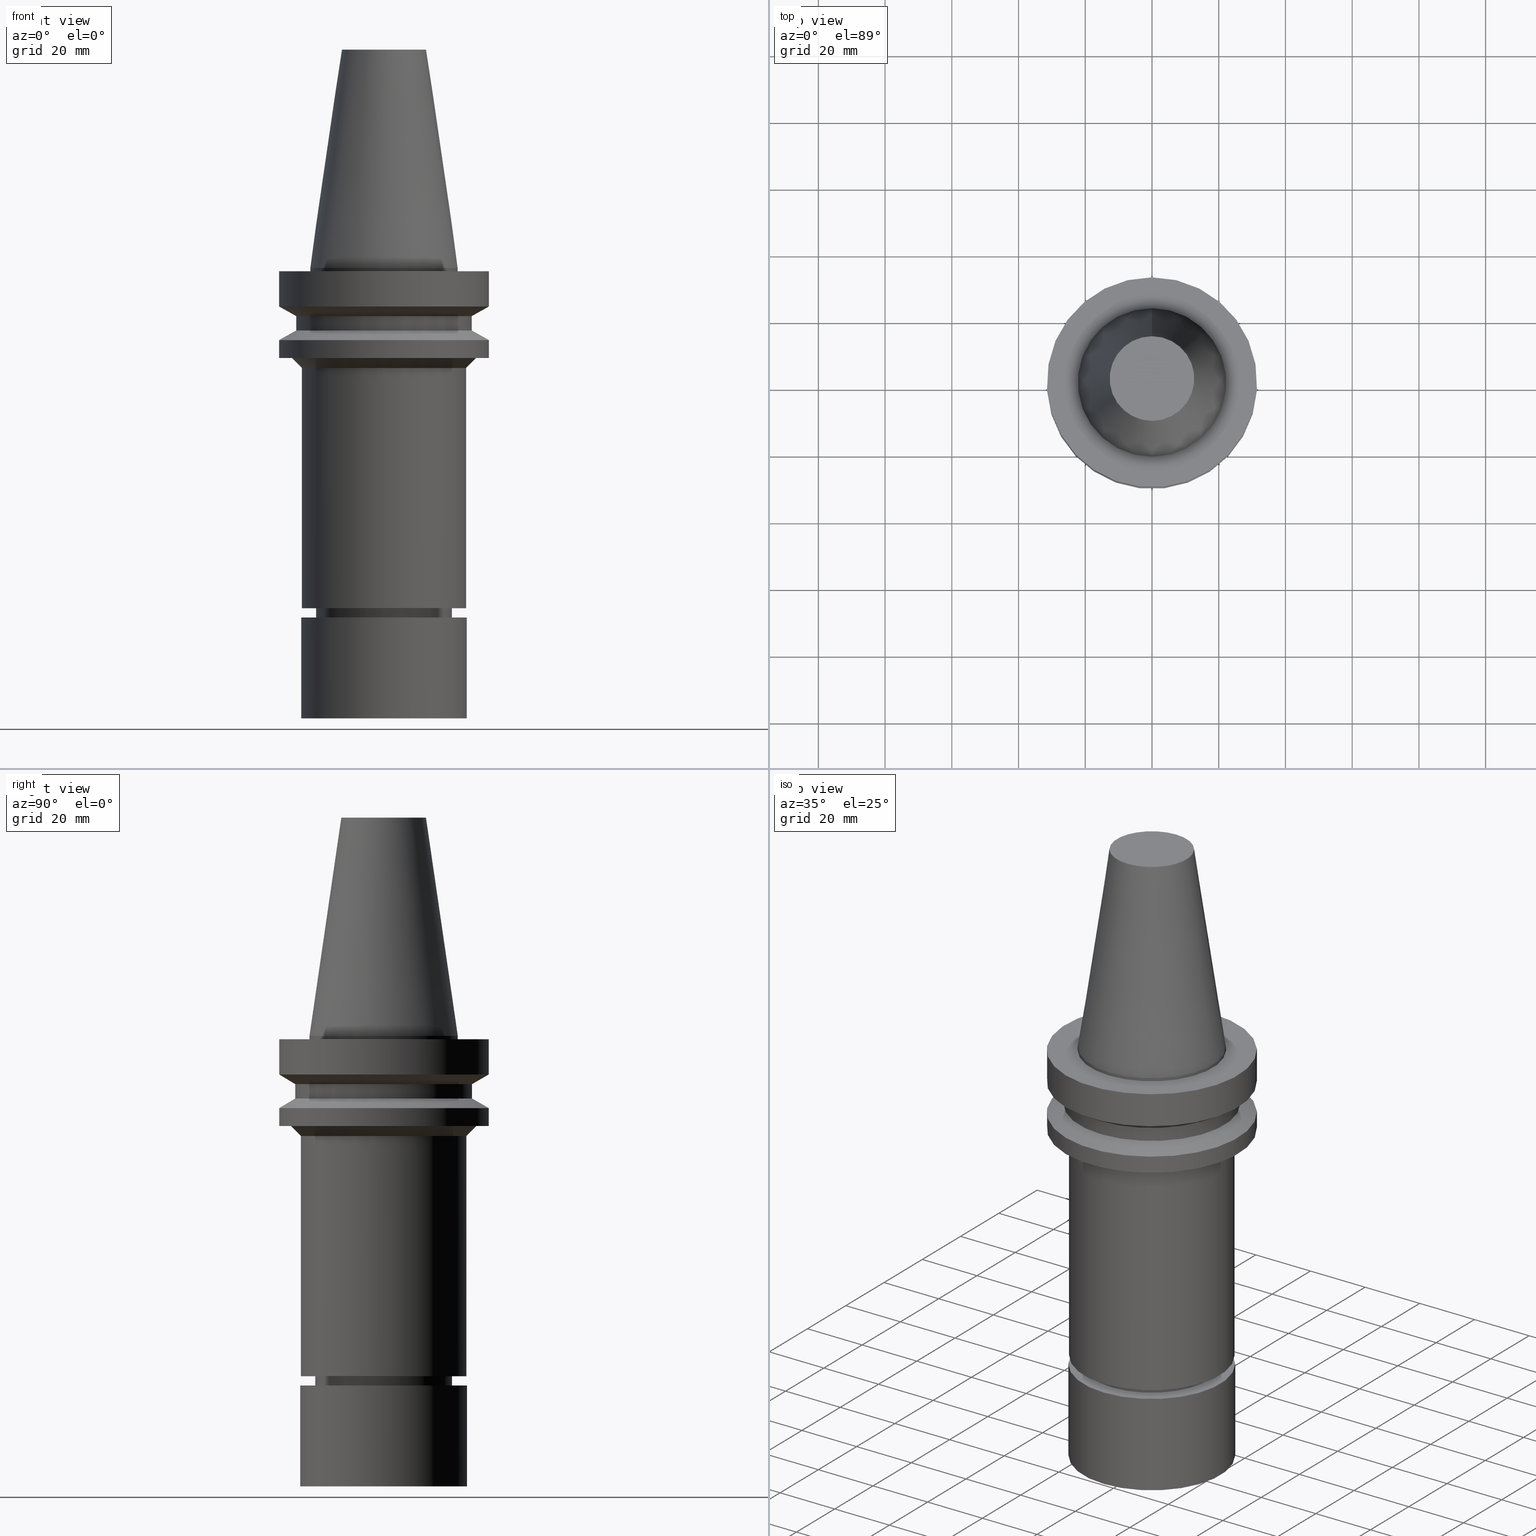
[diagram: canonical four-view strip — front | top / right | iso, engineering-drawing reading convention]
A machine part, canonical four-view strip (front | top / right | iso — engineering-drawing reading convention). The complete STEP part file that produces these views, byte-faithful:
ISO-10303-21;
HEADER;
FILE_DESCRIPTION((''),'1');
FILE_NAME('V:/90_\X2\53D65F9730C730FC30BF\X0\/00_\X2\6DE18DEF30C730FC30BF\X0\/ALL/BBT-BKUS\X2\FF76FF80FF9BFF78FF9E752852A05DE556F3\X0\201801/BBT40-MEGAER/BBT40-MEGAER32-135NL.stp','2018-02-07T02:36:01',(''),(''),'Spatial Interop R21 SP3','Kubotek KeyCreator 2011 V10.0.2 (22737)',' ');
FILE_SCHEMA(('automotive_design'));
ENDSEC;
DATA;
#1=MECHANICAL_DESIGN_GEOMETRIC_PRESENTATION_REPRESENTATION(' ',(#14,#15,#16,#17,#18,#19,#20,#21,#22,#23,#24,#25,#26,#27,#28,#29,#30,#31,#32,#33,#34,#35,#36,#37,#38,#39,#40,#41,#42,#43,#44,#45,#46,#47,#48,#49,#50,#51,#52,#53,#54,#55),#10);
#2=PRODUCT_DEFINITION_CONTEXT('',#56,'design');
#3=APPLICATION_PROTOCOL_DEFINITION('INTERNATIONAL STANDARD','automotive_design',1994,#56);
#4=PRODUCT_CATEGORY_RELATIONSHIP('NONE','NONE',#57,#58);
#5=SHAPE_DEFINITION_REPRESENTATION(#59,#60);
#6=PRODUCT_DEFINITION_CONTEXT('',#61,'design');
#7=APPLICATION_PROTOCOL_DEFINITION('INTERNATIONAL STANDARD','automotive_design',1994,#61);
#8=PRODUCT_CATEGORY_RELATIONSHIP('NONE','NONE',#62,#63);
#9=SHAPE_DEFINITION_REPRESENTATION(#64,#65);
#10= (GEOMETRIC_REPRESENTATION_CONTEXT(3)GLOBAL_UNCERTAINTY_ASSIGNED_CONTEXT((#68))GLOBAL_UNIT_ASSIGNED_CONTEXT((#70,#71,#72))REPRESENTATION_CONTEXT('NONE','WORKSPACE'));
#14=STYLED_ITEM('',(#74,#75),#76);
#15=STYLED_ITEM('',(#77,#78),#79);
#16=STYLED_ITEM('',(#80,#81),#82);
#17=STYLED_ITEM('',(#83,#84),#85);
#18=STYLED_ITEM('',(#86,#87),#88);
#19=STYLED_ITEM('',(#89),#90);
#20=STYLED_ITEM('',(#91),#92);
#21=STYLED_ITEM('',(#93),#94);
#22=STYLED_ITEM('',(#95,#96),#97);
#23=STYLED_ITEM('',(#98),#99);
#24=STYLED_ITEM('',(#100),#101);
#25=STYLED_ITEM('',(#102),#103);
#26=STYLED_ITEM('',(#104,#105),#106);
#27=STYLED_ITEM('',(#107,#108),#109);
#28=STYLED_ITEM('',(#110,#111),#112);
#29=STYLED_ITEM('',(#113,#114),#115);
#30=STYLED_ITEM('',(#116,#117),#118);
#31=STYLED_ITEM('',(#119),#120);
#32=STYLED_ITEM('',(#121),#122);
#33=STYLED_ITEM('',(#123),#124);
#34=STYLED_ITEM('',(#125,#126),#127);
#35=STYLED_ITEM('',(#128),#129);
#36=STYLED_ITEM('',(#130,#131),#132);
#37=STYLED_ITEM('',(#133,#134),#135);
#38=STYLED_ITEM('',(#136,#137),#138);
#39=STYLED_ITEM('',(#139),#140);
#40=STYLED_ITEM('',(#141),#142);
#41=STYLED_ITEM('',(#143),#144);
#42=STYLED_ITEM('',(#145,#146),#147);
#43=STYLED_ITEM('',(#148),#149);
#44=STYLED_ITEM('',(#150),#151);
#45=STYLED_ITEM('',(#152),#153);
#46=STYLED_ITEM('',(#154,#155),#156);
#47=STYLED_ITEM('',(#157,#158),#159);
#48=STYLED_ITEM('',(#160,#161),#162);
#49=STYLED_ITEM('',(#163,#164),#165);
#50=STYLED_ITEM('',(#166,#167),#168);
#51=STYLED_ITEM('',(#169),#170);
#52=STYLED_ITEM('',(#171),#172);
#53=STYLED_ITEM('',(#173,#174),#175);
#54=STYLED_ITEM('',(#176,#177),#178);
#55=STYLED_ITEM('',(#179),#180);
#56=APPLICATION_CONTEXT(' ');
#57=PRODUCT_CATEGORY('part','NONE');
#58=PRODUCT_RELATED_PRODUCT_CATEGORY('detail',' ',(#181));
#59=PRODUCT_DEFINITION_SHAPE('NONE','NONE',#182);
#60=ADVANCED_BREP_SHAPE_REPRESENTATION('Unnamed[1]',(#79,#183),#10);
#61=APPLICATION_CONTEXT(' ');
#62=PRODUCT_CATEGORY('part','NONE');
#63=PRODUCT_RELATED_PRODUCT_CATEGORY('detail',' ',(#184));
#64=PRODUCT_DEFINITION_SHAPE('NONE','NONE',#185);
#65=ADVANCED_BREP_SHAPE_REPRESENTATION('Unnamed[1]',(#85,#186),#10);
#68=UNCERTAINTY_MEASURE_WITH_UNIT(LENGTH_MEASURE(1.0E-006),#70,'','');
#70= (CONVERSION_BASED_UNIT('MILLIMETRE',#189)LENGTH_UNIT()NAMED_UNIT(#192));
#71= (NAMED_UNIT(#194)PLANE_ANGLE_UNIT()SI_UNIT($,.RADIAN.));
#72= (NAMED_UNIT(#194)SOLID_ANGLE_UNIT()SI_UNIT($,.STERADIAN.));
#74=PRESENTATION_STYLE_ASSIGNMENT((#200));
#75=PRESENTATION_STYLE_ASSIGNMENT((#201));
#76=ADVANCED_FACE('Unnamed[1]',(#202),#203,.T.);
#77=PRESENTATION_STYLE_ASSIGNMENT((#204));
#78=PRESENTATION_STYLE_ASSIGNMENT((#205));
#79=MANIFOLD_SOLID_BREP('Unnamed[1]',#206);
#80=PRESENTATION_STYLE_ASSIGNMENT((#207));
#81=PRESENTATION_STYLE_ASSIGNMENT((#208));
#82=ADVANCED_FACE('Unnamed[1]',(#209,#210),#211,.T.);
#83=PRESENTATION_STYLE_ASSIGNMENT((#212));
#84=PRESENTATION_STYLE_ASSIGNMENT((#213));
#85=MANIFOLD_SOLID_BREP('Unnamed[1]',#214);
#86=PRESENTATION_STYLE_ASSIGNMENT((#215));
#87=PRESENTATION_STYLE_ASSIGNMENT((#216));
#88=ADVANCED_FACE('Unnamed[1]',(#217,#218),#219,.T.);
#89=PRESENTATION_STYLE_ASSIGNMENT((#220));
#90=EDGE_CURVE('Unnamed[1]',#221,#221,#222,.T.);
#91=PRESENTATION_STYLE_ASSIGNMENT((#223));
#92=EDGE_CURVE('Unnamed[1]',#224,#224,#225,.T.);
#93=PRESENTATION_STYLE_ASSIGNMENT((#226));
#94=EDGE_CURVE('Unnamed[1]',#227,#227,#228,.T.);
#95=PRESENTATION_STYLE_ASSIGNMENT((#229));
#96=PRESENTATION_STYLE_ASSIGNMENT((#230));
#97=ADVANCED_FACE('Unnamed[1]',(#231,#232),#233,.T.);
#98=PRESENTATION_STYLE_ASSIGNMENT((#234));
#99=EDGE_CURVE('Unnamed[1]',#235,#235,#236,.T.);
#100=PRESENTATION_STYLE_ASSIGNMENT((#237));
#101=EDGE_CURVE('Unnamed[1]',#238,#238,#239,.T.);
#102=PRESENTATION_STYLE_ASSIGNMENT((#240));
#103=EDGE_CURVE('Unnamed[1]',#241,#241,#242,.T.);
#104=PRESENTATION_STYLE_ASSIGNMENT((#243));
#105=PRESENTATION_STYLE_ASSIGNMENT((#244));
#106=ADVANCED_FACE('Unnamed[1]',(#245,#246),#247,.T.);
#107=PRESENTATION_STYLE_ASSIGNMENT((#248));
#108=PRESENTATION_STYLE_ASSIGNMENT((#249));
#109=ADVANCED_FACE('Unnamed[1]',(#250,#251),#252,.T.);
#110=PRESENTATION_STYLE_ASSIGNMENT((#253));
#111=PRESENTATION_STYLE_ASSIGNMENT((#254));
#112=ADVANCED_FACE('Unnamed[1]',(#255,#256),#257,.T.);
#113=PRESENTATION_STYLE_ASSIGNMENT((#258));
#114=PRESENTATION_STYLE_ASSIGNMENT((#259));
#115=ADVANCED_FACE('Unnamed[1]',(#260,#261),#262,.T.);
#116=PRESENTATION_STYLE_ASSIGNMENT((#263));
#117=PRESENTATION_STYLE_ASSIGNMENT((#264));
#118=ADVANCED_FACE('Unnamed[1]',(#265),#266,.T.);
#119=PRESENTATION_STYLE_ASSIGNMENT((#267));
#120=EDGE_CURVE('Unnamed[1]',#268,#268,#269,.T.);
#121=PRESENTATION_STYLE_ASSIGNMENT((#270));
#122=EDGE_CURVE('Unnamed[1]',#271,#271,#272,.T.);
#123=PRESENTATION_STYLE_ASSIGNMENT((#273));
#124=EDGE_CURVE('Unnamed[1]',#274,#274,#275,.T.);
#125=PRESENTATION_STYLE_ASSIGNMENT((#276));
#126=PRESENTATION_STYLE_ASSIGNMENT((#277));
#127=ADVANCED_FACE('Unnamed[1]',(#278,#279),#280,.T.);
#128=PRESENTATION_STYLE_ASSIGNMENT((#281));
#129=EDGE_CURVE('Unnamed[1]',#282,#282,#283,.T.);
#130=PRESENTATION_STYLE_ASSIGNMENT((#284));
#131=PRESENTATION_STYLE_ASSIGNMENT((#285));
#132=ADVANCED_FACE('Unnamed[1]',(#286,#287),#288,.T.);
#133=PRESENTATION_STYLE_ASSIGNMENT((#289));
#134=PRESENTATION_STYLE_ASSIGNMENT((#290));
#135=ADVANCED_FACE('Unnamed[1]',(#291,#292),#293,.T.);
#136=PRESENTATION_STYLE_ASSIGNMENT((#294));
#137=PRESENTATION_STYLE_ASSIGNMENT((#295));
#138=ADVANCED_FACE('Unnamed[1]',(#296,#297),#298,.T.);
#139=PRESENTATION_STYLE_ASSIGNMENT((#299));
#140=EDGE_CURVE('Unnamed[1]',#300,#300,#301,.T.);
#141=PRESENTATION_STYLE_ASSIGNMENT((#302));
#142=EDGE_CURVE('Unnamed[1]',#303,#303,#304,.T.);
#143=PRESENTATION_STYLE_ASSIGNMENT((#305));
#144=EDGE_CURVE('Unnamed[1]',#306,#306,#307,.T.);
#145=PRESENTATION_STYLE_ASSIGNMENT((#308));
#146=PRESENTATION_STYLE_ASSIGNMENT((#309));
#147=ADVANCED_FACE('Unnamed[1]',(#310),#311,.T.);
#148=PRESENTATION_STYLE_ASSIGNMENT((#312));
#149=EDGE_CURVE('Unnamed[1]',#313,#313,#314,.T.);
#150=PRESENTATION_STYLE_ASSIGNMENT((#315));
#151=EDGE_CURVE('Unnamed[1]',#316,#316,#317,.T.);
#152=PRESENTATION_STYLE_ASSIGNMENT((#318));
#153=EDGE_CURVE('Unnamed[1]',#319,#319,#320,.T.);
#154=PRESENTATION_STYLE_ASSIGNMENT((#321));
#155=PRESENTATION_STYLE_ASSIGNMENT((#322));
#156=ADVANCED_FACE('Unnamed[1]',(#323,#324),#325,.T.);
#157=PRESENTATION_STYLE_ASSIGNMENT((#326));
#158=PRESENTATION_STYLE_ASSIGNMENT((#327));
#159=ADVANCED_FACE('Unnamed[1]',(#328,#329),#330,.T.);
#160=PRESENTATION_STYLE_ASSIGNMENT((#331));
#161=PRESENTATION_STYLE_ASSIGNMENT((#332));
#162=ADVANCED_FACE('Unnamed[1]',(#333,#334),#335,.T.);
#163=PRESENTATION_STYLE_ASSIGNMENT((#336));
#164=PRESENTATION_STYLE_ASSIGNMENT((#337));
#165=ADVANCED_FACE('Unnamed[1]',(#338,#339),#340,.T.);
#166=PRESENTATION_STYLE_ASSIGNMENT((#341));
#167=PRESENTATION_STYLE_ASSIGNMENT((#342));
#168=ADVANCED_FACE('Unnamed[1]',(#343),#344,.T.);
#169=PRESENTATION_STYLE_ASSIGNMENT((#345));
#170=EDGE_CURVE('Unnamed[1]',#346,#346,#347,.T.);
#171=PRESENTATION_STYLE_ASSIGNMENT((#348));
#172=EDGE_CURVE('Unnamed[1]',#349,#349,#350,.T.);
#173=PRESENTATION_STYLE_ASSIGNMENT((#351));
#174=PRESENTATION_STYLE_ASSIGNMENT((#352));
#175=ADVANCED_FACE('Unnamed[1]',(#353,#354),#355,.T.);
#176=PRESENTATION_STYLE_ASSIGNMENT((#356));
#177=PRESENTATION_STYLE_ASSIGNMENT((#357));
#178=ADVANCED_FACE('Unnamed[1]',(#358,#359),#360,.F.);
#179=PRESENTATION_STYLE_ASSIGNMENT((#361));
#180=EDGE_CURVE('Unnamed[1]',#362,#362,#363,.T.);
#181=PRODUCT('Unnamed[1]','Unnamed[1]','PART-Unnamed[1]-DESC',(#364));
#182=PRODUCT_DEFINITION('NONE','NONE',#365,#2);
#183=AXIS2_PLACEMENT_3D('',#366,#367,#368);
#184=PRODUCT('Unnamed[1]','Unnamed[1]','PART-Unnamed[1]-DESC',(#369));
#185=PRODUCT_DEFINITION('NONE','NONE',#370,#6);
#186=AXIS2_PLACEMENT_3D('',#371,#372,#373);
#189=LENGTH_MEASURE_WITH_UNIT(LENGTH_MEASURE(1.0),#374);
#192=DIMENSIONAL_EXPONENTS(1.0,0.0,0.0,0.0,0.0,0.0,0.0);
#194=DIMENSIONAL_EXPONENTS(0.0,0.0,0.0,0.0,0.0,0.0,0.0);
#200=SURFACE_STYLE_USAGE(.BOTH.,#375);
#201=CURVE_STYLE('',#376,POSITIVE_LENGTH_MEASURE(1000.0),#377);
#202=FACE_OUTER_BOUND('',#378,.T.);
#203=PLANE('',#379);
#204=SURFACE_STYLE_USAGE(.BOTH.,#380);
#205=CURVE_STYLE('',#381,POSITIVE_LENGTH_MEASURE(1000.0),#382);
#206=CLOSED_SHELL('',(#168,#165,#109,#162,#97,#88,#127,#132,#112,#178,#156,#138,#115,#135,#106,#175,#159,#76));
#207=SURFACE_STYLE_USAGE(.BOTH.,#383);
#208=CURVE_STYLE('',#384,POSITIVE_LENGTH_MEASURE(1000.0),#385);
#209=FACE_BOUND('',#386,.T.);
#210=FACE_BOUND('',#387,.T.);
#211=CYLINDRICAL_SURFACE('',#388,24.9999999999999);
#212=SURFACE_STYLE_USAGE(.BOTH.,#389);
#213=CURVE_STYLE('',#390,POSITIVE_LENGTH_MEASURE(1000.0),#391);
#214=CLOSED_SHELL('',(#147,#118,#82));
#215=SURFACE_STYLE_USAGE(.BOTH.,#392);
#216=CURVE_STYLE('',#393,POSITIVE_LENGTH_MEASURE(1000.0),#394);
#217=FACE_BOUND('',#395,.T.);
#218=FACE_BOUND('',#396,.T.);
#219=CONICAL_SURFACE('',#397,28.9999999999998,1.04719755119657);
#220=CURVE_STYLE('',#398,POSITIVE_LENGTH_MEASURE(1000.0),#399);
#221=VERTEX_POINT('',#400);
#222=CIRCLE('',#401,31.5000000000006);
#223=CURVE_STYLE('',#402,POSITIVE_LENGTH_MEASURE(1000.0),#403);
#224=VERTEX_POINT('',#404);
#225=CIRCLE('',#405,20.5000000000011);
#226=CURVE_STYLE('',#406,POSITIVE_LENGTH_MEASURE(1000.0),#407);
#227=VERTEX_POINT('',#408);
#228=CIRCLE('',#409,22.225);
#229=SURFACE_STYLE_USAGE(.BOTH.,#410);
#230=CURVE_STYLE('',#411,POSITIVE_LENGTH_MEASURE(1000.0),#412);
#231=FACE_BOUND('',#413,.T.);
#232=FACE_BOUND('',#414,.T.);
#233=CYLINDRICAL_SURFACE('',#415,31.5);
#234=CURVE_STYLE('',#416,POSITIVE_LENGTH_MEASURE(1000.0),#417);
#235=VERTEX_POINT('',#418);
#236=CIRCLE('',#419,24.9999999999999);
#237=CURVE_STYLE('',#420,POSITIVE_LENGTH_MEASURE(1000.0),#421);
#238=VERTEX_POINT('',#422);
#239=CIRCLE('',#423,24.7999999999997);
#240=CURVE_STYLE('',#424,POSITIVE_LENGTH_MEASURE(1000.0),#425);
#241=VERTEX_POINT('',#426);
#242=CIRCLE('',#427,20.0);
#243=SURFACE_STYLE_USAGE(.BOTH.,#428);
#244=CURVE_STYLE('',#429,POSITIVE_LENGTH_MEASURE(1000.0),#430);
#245=FACE_BOUND('',#431,.T.);
#246=FACE_BOUND('',#432,.T.);
#247=CONICAL_SURFACE('',#433,20.2500000000005,1.04719755120258);
#248=SURFACE_STYLE_USAGE(.BOTH.,#434);
#249=CURVE_STYLE('',#435,POSITIVE_LENGTH_MEASURE(1000.0),#436);
#250=FACE_BOUND('',#437,.T.);
#251=FACE_BOUND('',#438,.T.);
#252=CYLINDRICAL_SURFACE('',#439,22.225);
#253=SURFACE_STYLE_USAGE(.BOTH.,#440);
#254=CURVE_STYLE('',#441,POSITIVE_LENGTH_MEASURE(1000.0),#442);
#255=FACE_BOUND('',#443,.T.);
#256=FACE_BOUND('',#444,.T.);
#257=CYLINDRICAL_SURFACE('',#445,31.5000000000005);
#258=SURFACE_STYLE_USAGE(.BOTH.,#446);
#259=CURVE_STYLE('',#447,POSITIVE_LENGTH_MEASURE(1000.0),#448);
#260=FACE_BOUND('',#449,.T.);
#261=FACE_OUTER_BOUND('',#450,.T.);
#262=PLANE('',#451);
#263=SURFACE_STYLE_USAGE(.BOTH.,#452);
#264=CURVE_STYLE('',#453,POSITIVE_LENGTH_MEASURE(1000.0),#454);
#265=FACE_OUTER_BOUND('',#455,.T.);
#266=PLANE('',#456);
#267=CURVE_STYLE('',#457,POSITIVE_LENGTH_MEASURE(1000.0),#458);
#268=VERTEX_POINT('',#459);
#269=CIRCLE('',#460,12.6875000000001);
#270=CURVE_STYLE('',#461,POSITIVE_LENGTH_MEASURE(1000.0),#462);
#271=VERTEX_POINT('',#463);
#272=CIRCLE('',#464,22.225);
#273=CURVE_STYLE('',#465,POSITIVE_LENGTH_MEASURE(1000.0),#466);
#274=VERTEX_POINT('',#467);
#275=CIRCLE('',#468,31.5000000000003);
#276=SURFACE_STYLE_USAGE(.BOTH.,#469);
#277=CURVE_STYLE('',#470,POSITIVE_LENGTH_MEASURE(1000.0),#471);
#278=FACE_BOUND('',#472,.T.);
#279=FACE_BOUND('',#473,.T.);
#280=CYLINDRICAL_SURFACE('',#474,26.4999999999997);
#281=CURVE_STYLE('',#475,POSITIVE_LENGTH_MEASURE(1000.0),#476);
#282=VERTEX_POINT('',#477);
#283=CIRCLE('',#478,31.4999999999996);
#284=SURFACE_STYLE_USAGE(.BOTH.,#479);
#285=CURVE_STYLE('',#480,POSITIVE_LENGTH_MEASURE(1000.0),#481);
#286=FACE_BOUND('',#482,.T.);
#287=FACE_BOUND('',#483,.T.);
#288=CONICAL_SURFACE('',#484,29.0000000000003,1.04719755119651);
#289=SURFACE_STYLE_USAGE(.BOTH.,#485);
#290=CURVE_STYLE('',#486,POSITIVE_LENGTH_MEASURE(1000.0),#487);
#291=FACE_BOUND('',#488,.T.);
#292=FACE_BOUND('',#489,.T.);
#293=CYLINDRICAL_SURFACE('',#490,20.499999999996);
#294=SURFACE_STYLE_USAGE(.BOTH.,#491);
#295=CURVE_STYLE('',#492,POSITIVE_LENGTH_MEASURE(1000.0),#493);
#296=FACE_BOUND('',#494,.T.);
#297=FACE_BOUND('',#495,.T.);
#298=CYLINDRICAL_SURFACE('',#496,24.7999999999999);
#299=CURVE_STYLE('',#497,POSITIVE_LENGTH_MEASURE(1000.0),#498);
#300=VERTEX_POINT('',#499);
#301=CIRCLE('',#500,18.8999999999996);
#302=CURVE_STYLE('',#501,POSITIVE_LENGTH_MEASURE(1000.0),#502);
#303=VERTEX_POINT('',#503);
#304=CIRCLE('',#504,24.9999999999999);
#305=CURVE_STYLE('',#505,POSITIVE_LENGTH_MEASURE(1000.0),#506);
#306=VERTEX_POINT('',#507);
#307=CIRCLE('',#508,20.499999999991);
#308=SURFACE_STYLE_USAGE(.BOTH.,#509);
#309=CURVE_STYLE('',#510,POSITIVE_LENGTH_MEASURE(1000.0),#511);
#310=FACE_OUTER_BOUND('',#512,.T.);
#311=PLANE('',#513);
#312=CURVE_STYLE('',#514,POSITIVE_LENGTH_MEASURE(1000.0),#515);
#313=VERTEX_POINT('',#516);
#314=CIRCLE('',#517,26.5);
#315=CURVE_STYLE('',#518,POSITIVE_LENGTH_MEASURE(1000.0),#519);
#316=VERTEX_POINT('',#520);
#317=CIRCLE('',#521,31.5000000000003);
#318=CURVE_STYLE('',#522,POSITIVE_LENGTH_MEASURE(1000.0),#523);
#319=VERTEX_POINT('',#524);
#320=CIRCLE('',#525,26.4999999999994);
#321=SURFACE_STYLE_USAGE(.BOTH.,#526);
#322=CURVE_STYLE('',#527,POSITIVE_LENGTH_MEASURE(1000.0),#528);
#323=FACE_BOUND('',#529,.T.);
#324=FACE_BOUND('',#530,.T.);
#325=CONICAL_SURFACE('',#531,26.3000000012197,0.785398163374259);
#326=SURFACE_STYLE_USAGE(.BOTH.,#532);
#327=CURVE_STYLE('',#533,POSITIVE_LENGTH_MEASURE(1000.0),#534);
#328=FACE_BOUND('',#535,.T.);
#329=FACE_BOUND('',#536,.T.);
#330=CONICAL_SURFACE('',#537,19.4499999999998,0.523598775598225);
#331=SURFACE_STYLE_USAGE(.BOTH.,#538);
#332=CURVE_STYLE('',#539,POSITIVE_LENGTH_MEASURE(1000.0),#540);
#333=FACE_OUTER_BOUND('',#541,.T.);
#334=FACE_BOUND('',#542,.T.);
#335=PLANE('',#543);
#336=SURFACE_STYLE_USAGE(.BOTH.,#544);
#337=CURVE_STYLE('',#545,POSITIVE_LENGTH_MEASURE(1000.0),#546);
#338=FACE_BOUND('',#547,.T.);
#339=FACE_BOUND('',#548,.T.);
#340=CONICAL_SURFACE('',#549,17.45625,0.144812498238936);
#341=SURFACE_STYLE_USAGE(.BOTH.,#550);
#342=CURVE_STYLE('',#551,POSITIVE_LENGTH_MEASURE(1000.0),#552);
#343=FACE_OUTER_BOUND('',#553,.T.);
#344=PLANE('',#554);
#345=CURVE_STYLE('',#555,POSITIVE_LENGTH_MEASURE(1000.0),#556);
#346=VERTEX_POINT('',#557);
#347=CIRCLE('',#558,27.8000000024396);
#348=CURVE_STYLE('',#559,POSITIVE_LENGTH_MEASURE(1000.0),#560);
#349=VERTEX_POINT('',#561);
#350=CIRCLE('',#562,24.8000000000002);
#351=SURFACE_STYLE_USAGE(.BOTH.,#563);
#352=CURVE_STYLE('',#564,POSITIVE_LENGTH_MEASURE(1000.0),#565);
#353=FACE_BOUND('',#566,.T.);
#354=FACE_BOUND('',#567,.T.);
#355=CYLINDRICAL_SURFACE('',#568,19.9999999999999);
#356=SURFACE_STYLE_USAGE(.BOTH.,#569);
#357=CURVE_STYLE('',#570,POSITIVE_LENGTH_MEASURE(1000.0),#571);
#358=FACE_BOUND('',#572,.T.);
#359=FACE_BOUND('',#573,.T.);
#360=CONICAL_SURFACE('',#574,29.65000000122,1.57075486116235);
#361=CURVE_STYLE('',#575,POSITIVE_LENGTH_MEASURE(1000.0),#576);
#362=VERTEX_POINT('',#577);
#363=CIRCLE('',#578,19.9999999999999);
#364=PRODUCT_CONTEXT('',#56,'mechanical');
#365=PRODUCT_DEFINITION_FORMATION_WITH_SPECIFIED_SOURCE(' ','NONE',#181,.NOT_KNOWN.);
#366=CARTESIAN_POINT('',(0.0,0.0,0.0));
#367=DIRECTION('',(0.0,0.0,1.0));
#368=DIRECTION('',(1.0,0.0,0.0));
#369=PRODUCT_CONTEXT('',#61,'mechanical');
#370=PRODUCT_DEFINITION_FORMATION_WITH_SPECIFIED_SOURCE(' ','NONE',#184,.NOT_KNOWN.);
#371=CARTESIAN_POINT('',(0.0,0.0,0.0));
#372=DIRECTION('',(0.0,0.0,1.0));
#373=DIRECTION('',(1.0,0.0,0.0));
#374= (NAMED_UNIT(#192)LENGTH_UNIT()SI_UNIT(.MILLI.,.METRE.));
#375=SURFACE_SIDE_STYLE('',(#580));
#376=DRAUGHTING_PRE_DEFINED_CURVE_FONT('continuous');
#377=COLOUR_RGB('',0.0,1.0,0.0);
#378=EDGE_LOOP('',(#581));
#379=AXIS2_PLACEMENT_3D('',#582,#583,#584);
#380=SURFACE_SIDE_STYLE('',(#585));
#381=DRAUGHTING_PRE_DEFINED_CURVE_FONT('continuous');
#382=COLOUR_RGB('',0.0,1.0,0.0);
#383=SURFACE_SIDE_STYLE('',(#586));
#384=DRAUGHTING_PRE_DEFINED_CURVE_FONT('continuous');
#385=COLOUR_RGB('',0.0,1.0,0.0);
#386=EDGE_LOOP('',(#587));
#387=EDGE_LOOP('',(#588));
#388=AXIS2_PLACEMENT_3D('',#589,#590,#591);
#389=SURFACE_SIDE_STYLE('',(#592));
#390=DRAUGHTING_PRE_DEFINED_CURVE_FONT('continuous');
#391=COLOUR_RGB('',0.0,1.0,0.0);
#392=SURFACE_SIDE_STYLE('',(#593));
#393=DRAUGHTING_PRE_DEFINED_CURVE_FONT('continuous');
#394=COLOUR_RGB('',0.0,1.0,0.0);
#395=EDGE_LOOP('',(#594));
#396=EDGE_LOOP('',(#595));
#397=AXIS2_PLACEMENT_3D('',#596,#597,#598);
#398=DRAUGHTING_PRE_DEFINED_CURVE_FONT('continuous');
#399=COLOUR_RGB('',0.0,1.0,0.0);
#400=CARTESIAN_POINT('',(1.32473071268174E-015,31.5000000000007,-21.6344943473346));
#401=AXIS2_PLACEMENT_3D('',#599,#600,#601);
#402=DRAUGHTING_PRE_DEFINED_CURVE_FONT('continuous');
#403=COLOUR_RGB('',0.0,1.0,0.0);
#404=CARTESIAN_POINT('',(6.62604227973845E-015,20.5000000000011,-108.211482434801));
#405=AXIS2_PLACEMENT_3D('',#602,#603,#604);
#406=DRAUGHTING_PRE_DEFINED_CURVE_FONT('continuous');
#407=COLOUR_RGB('',0.0,1.0,0.0);
#408=CARTESIAN_POINT('',(6.12323399573622E-017,22.2250000000001,-0.999999999999912));
#409=AXIS2_PLACEMENT_3D('',#605,#606,#607);
#410=SURFACE_SIDE_STYLE('',(#608));
#411=DRAUGHTING_PRE_DEFINED_CURVE_FONT('continuous');
#412=COLOUR_RGB('',0.0,1.0,0.0);
#413=EDGE_LOOP('',(#609));
#414=EDGE_LOOP('',(#610));
#415=AXIS2_PLACEMENT_3D('',#611,#612,#613);
#416=DRAUGHTING_PRE_DEFINED_CURVE_FONT('continuous');
#417=COLOUR_RGB('',0.0,1.0,0.0);
#418=CARTESIAN_POINT('',(6.41714922753213E-015,25.0,-104.8));
#419=AXIS2_PLACEMENT_3D('',#614,#615,#616);
#420=DRAUGHTING_PRE_DEFINED_CURVE_FONT('continuous');
#421=COLOUR_RGB('',0.0,1.0,0.0);
#422=CARTESIAN_POINT('',(1.83697045278272E-015,24.7999999999998,-30.0000041491422));
#423=AXIS2_PLACEMENT_3D('',#617,#618,#619);
#424=DRAUGHTING_PRE_DEFINED_CURVE_FONT('continuous');
#425=COLOUR_RGB('',0.0,1.0,0.0);
#426=CARTESIAN_POINT('',(7.4761468784538E-015,20.0,-122.094744111673));
#427=AXIS2_PLACEMENT_3D('',#620,#621,#622);
#428=SURFACE_SIDE_STYLE('',(#623));
#429=DRAUGHTING_PRE_DEFINED_CURVE_FONT('continuous');
#430=COLOUR_RGB('',0.0,1.0,0.0);
#431=EDGE_LOOP('',(#624));
#432=EDGE_LOOP('',(#625));
#433=AXIS2_PLACEMENT_3D('',#626,#627,#628);
#434=SURFACE_SIDE_STYLE('',(#629));
#435=DRAUGHTING_PRE_DEFINED_CURVE_FONT('continuous');
#436=COLOUR_RGB('',0.0,1.0,0.0);
#437=EDGE_LOOP('',(#630));
#438=EDGE_LOOP('',(#631));
#439=AXIS2_PLACEMENT_3D('',#632,#633,#634);
#440=SURFACE_SIDE_STYLE('',(#635));
#441=DRAUGHTING_PRE_DEFINED_CURVE_FONT('continuous');
#442=COLOUR_RGB('',0.0,1.0,0.0);
#443=EDGE_LOOP('',(#636));
#444=EDGE_LOOP('',(#637));
#445=AXIS2_PLACEMENT_3D('',#638,#639,#640);
#446=SURFACE_SIDE_STYLE('',(#641));
#447=DRAUGHTING_PRE_DEFINED_CURVE_FONT('continuous');
#448=COLOUR_RGB('',0.0,1.0,0.0);
#449=EDGE_LOOP('',(#642));
#450=EDGE_LOOP('',(#643));
#451=AXIS2_PLACEMENT_3D('',#644,#645,#646);
#452=SURFACE_SIDE_STYLE('',(#647));
#453=DRAUGHTING_PRE_DEFINED_CURVE_FONT('continuous');
#454=COLOUR_RGB('',0.0,1.0,0.0);
#455=EDGE_LOOP('',(#648));
#456=AXIS2_PLACEMENT_3D('',#649,#650,#651);
#457=DRAUGHTING_PRE_DEFINED_CURVE_FONT('continuous');
#458=COLOUR_RGB('',0.0,1.0,0.0);
#459=CARTESIAN_POINT('',(-4.00459503321185E-015,12.6875000000002,65.4000000000001));
#460=AXIS2_PLACEMENT_3D('',#652,#653,#654);
#461=DRAUGHTING_PRE_DEFINED_CURVE_FONT('continuous');
#462=COLOUR_RGB('',0.0,1.0,0.0);
#463=CARTESIAN_POINT('',(1.71319921032766E-029,22.2250000000001,-2.8153873565375E-013));
#464=AXIS2_PLACEMENT_3D('',#655,#656,#657);
#465=DRAUGHTING_PRE_DEFINED_CURVE_FONT('continuous');
#466=COLOUR_RGB('',0.0,1.0,0.0);
#467=CARTESIAN_POINT('',(1.65328282719222E-015,31.5000000000004,-27.0001575694036));
#468=AXIS2_PLACEMENT_3D('',#658,#659,#660);
#469=SURFACE_SIDE_STYLE('',(#661));
#470=DRAUGHTING_PRE_DEFINED_CURVE_FONT('continuous');
#471=COLOUR_RGB('',0.0,1.0,0.0);
#472=EDGE_LOOP('',(#662));
#473=EDGE_LOOP('',(#663));
#474=AXIS2_PLACEMENT_3D('',#664,#665,#666);
#475=DRAUGHTING_PRE_DEFINED_CURVE_FONT('continuous');
#476=COLOUR_RGB('',0.0,1.0,0.0);
#477=CARTESIAN_POINT('',(6.12323399573568E-017,31.4999999999997,-0.999999999999825));
#478=AXIS2_PLACEMENT_3D('',#667,#668,#669);
#479=SURFACE_SIDE_STYLE('',(#670));
#480=DRAUGHTING_PRE_DEFINED_CURVE_FONT('continuous');
#481=COLOUR_RGB('',0.0,1.0,0.0);
#482=EDGE_LOOP('',(#671));
#483=EDGE_LOOP('',(#672));
#484=AXIS2_PLACEMENT_3D('',#673,#674,#675);
#485=SURFACE_SIDE_STYLE('',(#676));
#486=DRAUGHTING_PRE_DEFINED_CURVE_FONT('continuous');
#487=COLOUR_RGB('',0.0,1.0,0.0);
#488=EDGE_LOOP('',(#677));
#489=EDGE_LOOP('',(#678));
#490=AXIS2_PLACEMENT_3D('',#679,#680,#681);
#491=SURFACE_SIDE_STYLE('',(#682));
#492=DRAUGHTING_PRE_DEFINED_CURVE_FONT('continuous');
#493=COLOUR_RGB('',0.0,1.0,0.0);
#494=EDGE_LOOP('',(#683));
#495=EDGE_LOOP('',(#684));
#496=AXIS2_PLACEMENT_3D('',#685,#686,#687);
#497=DRAUGHTING_PRE_DEFINED_CURVE_FONT('continuous');
#498=COLOUR_RGB('',0.0,1.0,0.0);
#499=CARTESIAN_POINT('',(7.5928101547136E-015,18.8999999999997,-124.0));
#500=AXIS2_PLACEMENT_3D('',#688,#689,#690);
#501=DRAUGHTING_PRE_DEFINED_CURVE_FONT('continuous');
#502=COLOUR_RGB('',0.0,1.0,0.0);
#503=CARTESIAN_POINT('',(8.26636589424463E-015,25.0,-135.0));
#504=AXIS2_PLACEMENT_3D('',#691,#692,#693);
#505=DRAUGHTING_PRE_DEFINED_CURVE_FONT('continuous');
#506=COLOUR_RGB('',0.0,1.0,0.0);
#507=CARTESIAN_POINT('',(6.24570832399484E-015,20.4999999999911,-102.000157569404));
#508=AXIS2_PLACEMENT_3D('',#694,#695,#696);
#509=SURFACE_SIDE_STYLE('',(#697));
#510=DRAUGHTING_PRE_DEFINED_CURVE_FONT('continuous');
#511=COLOUR_RGB('',0.0,1.0,0.0);
#512=EDGE_LOOP('',(#698));
#513=AXIS2_PLACEMENT_3D('',#699,#700,#701);
#514=DRAUGHTING_PRE_DEFINED_CURVE_FONT('continuous');
#515=COLOUR_RGB('',0.0,1.0,0.0);
#516=CARTESIAN_POINT('',(1.1479681728942E-015,26.5,-18.7477430013855));
#517=AXIS2_PLACEMENT_3D('',#702,#703,#704);
#518=DRAUGHTING_PRE_DEFINED_CURVE_FONT('continuous');
#519=COLOUR_RGB('',0.0,1.0,0.0);
#520=CARTESIAN_POINT('',(7.08182973902924E-016,31.5000000000004,-11.5655056526664));
#521=AXIS2_PLACEMENT_3D('',#705,#706,#707);
#522=DRAUGHTING_PRE_DEFINED_CURVE_FONT('continuous');
#523=COLOUR_RGB('',0.0,1.0,0.0);
#524=CARTESIAN_POINT('',(8.8494551369045E-016,26.4999999999995,-14.4522569986152));
#525=AXIS2_PLACEMENT_3D('',#708,#709,#710);
#526=SURFACE_SIDE_STYLE('',(#711));
#527=DRAUGHTING_PRE_DEFINED_CURVE_FONT('continuous');
#528=COLOUR_RGB('',0.0,1.0,0.0);
#529=EDGE_LOOP('',(#712));
#530=EDGE_LOOP('',(#713));
#531=AXIS2_PLACEMENT_3D('',#714,#715,#716);
#532=SURFACE_SIDE_STYLE('',(#717));
#533=DRAUGHTING_PRE_DEFINED_CURVE_FONT('continuous');
#534=COLOUR_RGB('',0.0,1.0,0.0);
#535=EDGE_LOOP('',(#718));
#536=EDGE_LOOP('',(#719));
#537=AXIS2_PLACEMENT_3D('',#720,#721,#722);
#538=SURFACE_SIDE_STYLE('',(#723));
#539=DRAUGHTING_PRE_DEFINED_CURVE_FONT('continuous');
#540=COLOUR_RGB('',0.0,1.0,0.0);
#541=EDGE_LOOP('',(#724));
#542=EDGE_LOOP('',(#725));
#543=AXIS2_PLACEMENT_3D('',#726,#727,#728);
#544=SURFACE_SIDE_STYLE('',(#729));
#545=DRAUGHTING_PRE_DEFINED_CURVE_FONT('continuous');
#546=COLOUR_RGB('',0.0,1.0,0.0);
#547=EDGE_LOOP('',(#730));
#548=EDGE_LOOP('',(#731));
#549=AXIS2_PLACEMENT_3D('',#732,#733,#734);
#550=SURFACE_SIDE_STYLE('',(#735));
#551=DRAUGHTING_PRE_DEFINED_CURVE_FONT('continuous');
#552=COLOUR_RGB('',0.0,1.0,0.0);
#553=EDGE_LOOP('',(#736));
#554=AXIS2_PLACEMENT_3D('',#737,#738,#739);
#555=DRAUGHTING_PRE_DEFINED_CURVE_FONT('continuous');
#556=COLOUR_RGB('',0.0,1.0,0.0);
#557=CARTESIAN_POINT('',(1.65327343275269E-015,27.8000000024397,-27.0000041465632));
#558=AXIS2_PLACEMENT_3D('',#740,#741,#742);
#559=DRAUGHTING_PRE_DEFINED_CURVE_FONT('continuous');
#560=COLOUR_RGB('',0.0,1.0,0.0);
#561=CARTESIAN_POINT('',(6.24570832399482E-015,24.8000000000003,-102.000157569404));
#562=AXIS2_PLACEMENT_3D('',#743,#744,#745);
#563=SURFACE_SIDE_STYLE('',(#746));
#564=DRAUGHTING_PRE_DEFINED_CURVE_FONT('continuous');
#565=COLOUR_RGB('',0.0,1.0,0.0);
#566=EDGE_LOOP('',(#747));
#567=EDGE_LOOP('',(#748));
#568=AXIS2_PLACEMENT_3D('',#749,#750,#751);
#569=SURFACE_SIDE_STYLE('',(#752));
#570=DRAUGHTING_PRE_DEFINED_CURVE_FONT('continuous');
#571=COLOUR_RGB('',0.0,1.0,0.0);
#572=EDGE_LOOP('',(#753));
#573=EDGE_LOOP('',(#754));
#574=AXIS2_PLACEMENT_3D('',#755,#756,#757);
#575=DRAUGHTING_PRE_DEFINED_CURVE_FONT('continuous');
#576=COLOUR_RGB('',0.0,1.0,0.0);
#577=CARTESIAN_POINT('',(6.643718533717E-015,20.0,-108.500157569392));
#578=AXIS2_PLACEMENT_3D('',#758,#759,#760);
#580=SURFACE_STYLE_FILL_AREA(#761);
#581=ORIENTED_EDGE('',*,*,#140,.T.);
#582=CARTESIAN_POINT('',(7.59281015471359E-015,9.44999999999987,-124.0));
#583=DIRECTION('',(6.12323399573677E-017,-1.56673738925323E-014,-1.0));
#584=DIRECTION('',(9.54522811695953E-031,1.0,-1.56673738925323E-014));
#585=SURFACE_STYLE_FILL_AREA(#762);
#586=SURFACE_STYLE_FILL_AREA(#763);
#587=ORIENTED_EDGE('',*,*,#142,.F.);
#588=ORIENTED_EDGE('',*,*,#99,.T.);
#589=CARTESIAN_POINT('',(7.34175756088838E-015,7.54950929267861E-014,-119.9));
#590=DIRECTION('',(6.12323399573677E-017,-8.98149397141931E-018,-1.0));
#591=DIRECTION('',(-4.27719483858603E-033,1.0,-8.98149397141931E-018));
#592=SURFACE_STYLE_FILL_AREA(#764);
#593=SURFACE_STYLE_FILL_AREA(#765);
#594=ORIENTED_EDGE('',*,*,#153,.F.);
#595=ORIENTED_EDGE('',*,*,#151,.T.);
#596=CARTESIAN_POINT('',(7.96564243796687E-016,7.64551348647582E-014,-13.0088813256408));
#597=DIRECTION('',(-6.12323399573677E-017,8.98149397141931E-018,1.0));
#598=DIRECTION('',(-4.27719483858603E-033,1.0,-8.9814939714193E-018));
#599=CARTESIAN_POINT('',(1.32473071268174E-015,7.6377663973404E-014,-21.6344943473346));
#600=DIRECTION('',(6.12323399573677E-017,-8.9814939714193E-018,-1.0));
#601=DIRECTION('',(-4.27719483858603E-033,1.0,-8.9814939714193E-018));
#602=CARTESIAN_POINT('',(6.62604227973845E-015,7.56000732768328E-014,-108.211482434801));
#603=DIRECTION('',(6.12323399573677E-017,-8.9814939714193E-018,-1.0));
#604=DIRECTION('',(-4.27719483858603E-033,1.0,-8.9814939714193E-018));
#605=CARTESIAN_POINT('',(6.12323399573624E-017,7.65629925599879E-014,-0.999999999999915));
#606=DIRECTION('',(6.12323399573677E-017,-8.9814939714193E-018,-1.0));
#607=DIRECTION('',(-4.27719483858603E-033,1.0,-8.9814939714193E-018));
#608=SURFACE_STYLE_FILL_AREA(#766);
#609=ORIENTED_EDGE('',*,*,#151,.F.);
#610=ORIENTED_EDGE('',*,*,#129,.T.);
#611=CARTESIAN_POINT('',(3.84707656930141E-016,7.65155455473257E-014,-6.28275282633309));
#612=DIRECTION('',(6.12323399573677E-017,-8.98149397141932E-018,-1.0));
#613=DIRECTION('',(-4.27719483858603E-033,1.0,-8.98149397141931E-018));
#614=CARTESIAN_POINT('',(6.41714922753213E-015,7.56307134857546E-014,-104.8));
#615=DIRECTION('',(6.12323399573677E-017,-8.98149397141931E-018,-1.0));
#616=DIRECTION('',(-4.27719483858603E-033,1.0,-8.98149397141931E-018));
#617=CARTESIAN_POINT('',(1.83697045278272E-015,7.63025291975512E-014,-30.0000041491422));
#618=DIRECTION('',(6.12323399573676E-017,-8.9814939714193E-018,-1.0));
#619=DIRECTION('',(-4.27719483858603E-033,1.0,-8.9814939714193E-018));
#620=CARTESIAN_POINT('',(7.4761468784538E-015,7.54753808457783E-014,-122.094744111673));
#621=DIRECTION('',(6.12323399573677E-017,-8.9814939714193E-018,-1.0));
#622=DIRECTION('',(-4.27719483858603E-033,1.0,-8.9814939714193E-018));
#623=SURFACE_STYLE_FILL_AREA(#767);
#624=ORIENTED_EDGE('',*,*,#180,.F.);
#625=ORIENTED_EDGE('',*,*,#92,.T.);
#626=CARTESIAN_POINT('',(6.63488040672773E-015,7.55987769098423E-014,-108.355820002097));
#627=DIRECTION('',(-6.12323399573677E-017,8.98149397141931E-018,1.0));
#628=DIRECTION('',(-4.27719483858603E-033,1.0,-8.98149397141931E-018));
#629=SURFACE_STYLE_FILL_AREA(#768);
#630=ORIENTED_EDGE('',*,*,#94,.F.);
#631=ORIENTED_EDGE('',*,*,#122,.T.);
#632=CARTESIAN_POINT('',(3.06161699786899E-017,7.65674833069736E-014,-0.500000000000099));
#633=DIRECTION('',(6.12323399573677E-017,-8.9814939714193E-018,-1.0));
#634=DIRECTION('',(-4.27719483858603E-033,1.0,-8.9814939714193E-018));
#635=SURFACE_STYLE_FILL_AREA(#769);
#636=ORIENTED_EDGE('',*,*,#124,.F.);
#637=ORIENTED_EDGE('',*,*,#90,.T.);
#638=CARTESIAN_POINT('',(1.48900676993698E-015,7.63535681374632E-014,-24.3173259583691));
#639=DIRECTION('',(6.12323399573677E-017,-8.98149397141929E-018,-1.0));
#640=DIRECTION('',(-4.27719483858603E-033,1.0,-8.98149397141929E-018));
#641=SURFACE_STYLE_FILL_AREA(#770);
#642=ORIENTED_EDGE('',*,*,#144,.F.);
#643=ORIENTED_EDGE('',*,*,#172,.T.);
#644=CARTESIAN_POINT('',(6.24570832399483E-015,22.6499999999957,-102.000157569404));
#645=DIRECTION('',(6.12323399573677E-017,6.95243132888925E-014,-1.0));
#646=DIRECTION('',(-4.26196353933877E-030,1.0,6.95243132888925E-014));
#647=SURFACE_STYLE_FILL_AREA(#771);
#648=ORIENTED_EDGE('',*,*,#99,.F.);
#649=CARTESIAN_POINT('',(6.41714922753213E-015,12.5,-104.8));
#650=DIRECTION('',(-6.12323399573677E-017,-1.22464679914735E-016,1.0));
#651=DIRECTION('',(1.23259516440783E-032,-1.0,-1.22464679914735E-016));
#652=CARTESIAN_POINT('',(-4.00459503321185E-015,7.71593637596901E-014,65.4000000000001));
#653=DIRECTION('',(6.12323399573677E-017,-8.98149397141931E-018,-1.0));
#654=DIRECTION('',(-4.27719483858603E-033,1.0,-8.98149397141931E-018));
#655=CARTESIAN_POINT('',(1.74032777401202E-029,7.65719740539593E-014,-2.8421709430404E-013));
#656=DIRECTION('',(6.12323399573677E-017,-8.9814939714193E-018,-1.0));
#657=DIRECTION('',(-4.27719483858603E-033,1.0,-8.9814939714193E-018));
#658=CARTESIAN_POINT('',(1.65328282719222E-015,7.63294723015223E-014,-27.0001575694036));
#659=DIRECTION('',(6.12323399573677E-017,-8.98149397141932E-018,-1.0));
#660=DIRECTION('',(-4.27719483858603E-033,1.0,-8.98149397141932E-018));
#661=SURFACE_STYLE_FILL_AREA(#772);
#662=ORIENTED_EDGE('',*,*,#149,.F.);
#663=ORIENTED_EDGE('',*,*,#153,.T.);
#664=CARTESIAN_POINT('',(1.01645684329232E-015,7.64228812540338E-014,-16.6000000000004));
#665=DIRECTION('',(6.12323399573677E-017,-8.9814939714193E-018,-1.0));
#666=DIRECTION('',(-4.27719483858603E-033,1.0,-8.9814939714193E-018));
#667=CARTESIAN_POINT('',(6.12323399573572E-017,7.65629925599879E-014,-0.999999999999829));
#668=DIRECTION('',(6.12323399573677E-017,-8.98149397141931E-018,-1.0));
#669=DIRECTION('',(-4.27719483858603E-033,1.0,-8.98149397141931E-018));
#670=SURFACE_STYLE_FILL_AREA(#773);
#671=ORIENTED_EDGE('',*,*,#90,.F.);
#672=ORIENTED_EDGE('',*,*,#149,.T.);
#673=CARTESIAN_POINT('',(1.23634944278797E-015,7.63906276433093E-014,-20.1911186743601));
#674=DIRECTION('',(6.12323399573677E-017,-8.98149397141932E-018,-1.0));
#675=DIRECTION('',(-4.27719483858603E-033,1.0,-8.98149397141931E-018));
#676=SURFACE_STYLE_FILL_AREA(#774);
#677=ORIENTED_EDGE('',*,*,#92,.F.);
#678=ORIENTED_EDGE('',*,*,#144,.T.);
#679=CARTESIAN_POINT('',(6.43587530186665E-015,7.56279667652493E-014,-105.105820002103));
#680=DIRECTION('',(6.12323399573677E-017,-8.98149397141931E-018,-1.0));
#681=DIRECTION('',(-4.27719483858603E-033,1.0,-8.98149397141931E-018));
#682=SURFACE_STYLE_FILL_AREA(#775);
#683=ORIENTED_EDGE('',*,*,#172,.F.);
#684=ORIENTED_EDGE('',*,*,#101,.T.);
#685=CARTESIAN_POINT('',(4.04133938838877E-015,7.59791947256086E-014,-66.0000808592732));
#686=DIRECTION('',(6.12323399573677E-017,-8.98149397141931E-018,-1.0));
#687=DIRECTION('',(-4.27719483858603E-033,1.0,-8.98149397141931E-018));
#688=CARTESIAN_POINT('',(7.5928101547136E-015,7.54582688015033E-014,-124.0));
#689=DIRECTION('',(6.12323399573677E-017,-8.9814939714193E-018,-1.0));
#690=DIRECTION('',(-4.27719483858603E-033,1.0,-8.9814939714193E-018));
#691=CARTESIAN_POINT('',(8.26636589424463E-015,7.53594723678177E-014,-135.0));
#692=DIRECTION('',(6.12323399573677E-017,-8.98149397141931E-018,-1.0));
#693=DIRECTION('',(-4.27719483858603E-033,1.0,-8.98149397141931E-018));
#694=CARTESIAN_POINT('',(6.24570832399484E-015,7.56558602536659E-014,-102.000157569404));
#695=DIRECTION('',(6.12323399573677E-017,-8.98149397141931E-018,-1.0));
#696=DIRECTION('',(-4.27719483858603E-033,1.0,-8.98149397141931E-018));
#697=SURFACE_STYLE_FILL_AREA(#776);
#698=ORIENTED_EDGE('',*,*,#142,.T.);
#699=CARTESIAN_POINT('',(8.26636589424463E-015,12.5,-135.0));
#700=DIRECTION('',(6.12323399573677E-017,1.22464679914735E-016,-1.0));
#701=DIRECTION('',(-1.23259516440783E-032,1.0,1.22464679914735E-016));
#702=CARTESIAN_POINT('',(1.1479681728942E-015,7.64035913132146E-014,-18.7477430013855));
#703=DIRECTION('',(6.12323399573677E-017,-8.98149397141931E-018,-1.0));
#704=DIRECTION('',(-4.27719483858603E-033,1.0,-8.98149397141931E-018));
#705=CARTESIAN_POINT('',(7.08182973902924E-016,7.64680985346635E-014,-11.5655056526664));
#706=DIRECTION('',(6.12323399573677E-017,-8.98149397141932E-018,-1.0));
#707=DIRECTION('',(-4.27719483858603E-033,1.0,-8.98149397141932E-018));
#708=CARTESIAN_POINT('',(8.8494551369045E-016,7.64421711948529E-014,-14.4522569986152));
#709=DIRECTION('',(6.12323399573677E-017,-8.98149397141931E-018,-1.0));
#710=DIRECTION('',(-4.27719483858603E-033,1.0,-8.98149397141931E-018));
#711=SURFACE_STYLE_FILL_AREA(#777);
#712=ORIENTED_EDGE('',*,*,#101,.F.);
#713=ORIENTED_EDGE('',*,*,#170,.T.);
#714=CARTESIAN_POINT('',(1.74512194276771E-015,7.63160014385199E-014,-28.5000041478527));
#715=DIRECTION('',(-6.12323399573677E-017,8.9814939714193E-018,1.0));
#716=DIRECTION('',(-4.27719483858603E-033,1.0,-8.9814939714193E-018));
#717=SURFACE_STYLE_FILL_AREA(#778);
#718=ORIENTED_EDGE('',*,*,#140,.F.);
#719=ORIENTED_EDGE('',*,*,#103,.T.);
#720=CARTESIAN_POINT('',(7.5344785165837E-015,7.54668248236408E-014,-123.047372055837));
#721=DIRECTION('',(-6.12323399573677E-017,8.98149397141931E-018,1.0));
#722=DIRECTION('',(-4.27719483858603E-033,1.0,-8.98149397141931E-018));
#723=SURFACE_STYLE_FILL_AREA(#779);
#724=ORIENTED_EDGE('',*,*,#129,.F.);
#725=ORIENTED_EDGE('',*,*,#94,.T.);
#726=CARTESIAN_POINT('',(6.12323399573595E-017,26.8624999999999,-0.999999999999869));
#727=DIRECTION('',(-6.12323399573677E-017,-9.35138060429241E-015,1.0));
#728=DIRECTION('',(5.77434068963536E-031,-1.0,-9.35138060429241E-015));
#729=SURFACE_STYLE_FILL_AREA(#780);
#730=ORIENTED_EDGE('',*,*,#122,.F.);
#731=ORIENTED_EDGE('',*,*,#120,.T.);
#732=CARTESIAN_POINT('',(-2.00229751660592E-015,7.68656689068247E-014,32.6999999999999));
#733=DIRECTION('',(6.12323399573677E-017,-8.98149397141931E-018,-1.0));
#734=DIRECTION('',(-4.27719483858603E-033,1.0,-8.98149397141931E-018));
#735=SURFACE_STYLE_FILL_AREA(#781);
#736=ORIENTED_EDGE('',*,*,#120,.F.);
#737=CARTESIAN_POINT('',(-4.00459503321185E-015,6.34375000000014,65.4000000000001));
#738=DIRECTION('',(-6.12323399573677E-017,9.97602686800683E-016,1.0));
#739=DIRECTION('',(-5.62583941297938E-032,-1.0,9.97602686800683E-016));
#740=CARTESIAN_POINT('',(1.6532734327527E-015,7.63294736794887E-014,-27.0000041465632));
#741=DIRECTION('',(6.12323399573677E-017,-8.98149397141929E-018,-1.0));
#742=DIRECTION('',(-4.27719483858603E-033,1.0,-8.98149397141929E-018));
#743=CARTESIAN_POINT('',(6.24570832399482E-015,7.56558602536659E-014,-102.000157569404));
#744=DIRECTION('',(6.12323399573676E-017,-8.98149397141931E-018,-1.0));
#745=DIRECTION('',(-4.27719483858603E-033,1.0,-8.98149397141931E-018));
#746=SURFACE_STYLE_FILL_AREA(#782);
#747=ORIENTED_EDGE('',*,*,#103,.F.);
#748=ORIENTED_EDGE('',*,*,#180,.T.);
#749=CARTESIAN_POINT('',(7.0599327060854E-015,7.55364306943151E-014,-115.297450840533));
#750=DIRECTION('',(6.12323399573677E-017,-8.98149397141931E-018,-1.0));
#751=DIRECTION('',(-4.27719483858603E-033,1.0,-8.98149397141931E-018));
#752=SURFACE_STYLE_FILL_AREA(#783);
#753=ORIENTED_EDGE('',*,*,#170,.F.);
#754=ORIENTED_EDGE('',*,*,#124,.T.);
#755=CARTESIAN_POINT('',(1.65327812997246E-015,7.63294729905055E-014,-27.0000808579834));
#756=DIRECTION('',(6.12323399573676E-017,-8.9814939714193E-018,-1.0));
#757=DIRECTION('',(-4.27719483858603E-033,1.0,-8.9814939714193E-018));
#758=CARTESIAN_POINT('',(6.643718533717E-015,7.55974805428518E-014,-108.500157569392));
#759=DIRECTION('',(6.12323399573677E-017,-8.98149397141931E-018,-1.0));
#760=DIRECTION('',(-4.27719483858603E-033,1.0,-8.98149397141931E-018));
#761=FILL_AREA_STYLE('',(#784));
#762=FILL_AREA_STYLE('',(#785));
#763=FILL_AREA_STYLE('',(#786));
#764=FILL_AREA_STYLE('',(#787));
#765=FILL_AREA_STYLE('',(#788));
#766=FILL_AREA_STYLE('',(#789));
#767=FILL_AREA_STYLE('',(#790));
#768=FILL_AREA_STYLE('',(#791));
#769=FILL_AREA_STYLE('',(#792));
#770=FILL_AREA_STYLE('',(#793));
#771=FILL_AREA_STYLE('',(#794));
#772=FILL_AREA_STYLE('',(#795));
#773=FILL_AREA_STYLE('',(#796));
#774=FILL_AREA_STYLE('',(#797));
#775=FILL_AREA_STYLE('',(#798));
#776=FILL_AREA_STYLE('',(#799));
#777=FILL_AREA_STYLE('',(#800));
#778=FILL_AREA_STYLE('',(#801));
#779=FILL_AREA_STYLE('',(#802));
#780=FILL_AREA_STYLE('',(#803));
#781=FILL_AREA_STYLE('',(#804));
#782=FILL_AREA_STYLE('',(#805));
#783=FILL_AREA_STYLE('',(#806));
#784=FILL_AREA_STYLE_COLOUR('',#807);
#785=FILL_AREA_STYLE_COLOUR('',#808);
#786=FILL_AREA_STYLE_COLOUR('',#809);
#787=FILL_AREA_STYLE_COLOUR('',#810);
#788=FILL_AREA_STYLE_COLOUR('',#811);
#789=FILL_AREA_STYLE_COLOUR('',#812);
#790=FILL_AREA_STYLE_COLOUR('',#813);
#791=FILL_AREA_STYLE_COLOUR('',#814);
#792=FILL_AREA_STYLE_COLOUR('',#815);
#793=FILL_AREA_STYLE_COLOUR('',#816);
#794=FILL_AREA_STYLE_COLOUR('',#817);
#795=FILL_AREA_STYLE_COLOUR('',#818);
#796=FILL_AREA_STYLE_COLOUR('',#819);
#797=FILL_AREA_STYLE_COLOUR('',#820);
#798=FILL_AREA_STYLE_COLOUR('',#821);
#799=FILL_AREA_STYLE_COLOUR('',#822);
#800=FILL_AREA_STYLE_COLOUR('',#823);
#801=FILL_AREA_STYLE_COLOUR('',#824);
#802=FILL_AREA_STYLE_COLOUR('',#825);
#803=FILL_AREA_STYLE_COLOUR('',#826);
#804=FILL_AREA_STYLE_COLOUR('',#827);
#805=FILL_AREA_STYLE_COLOUR('',#828);
#806=FILL_AREA_STYLE_COLOUR('',#829);
#807=COLOUR_RGB('',0.0,1.0,0.0);
#808=COLOUR_RGB('',0.0,1.0,0.0);
#809=COLOUR_RGB('',0.0,1.0,0.0);
#810=COLOUR_RGB('',0.0,1.0,0.0);
#811=COLOUR_RGB('',0.0,1.0,0.0);
#812=COLOUR_RGB('',0.0,1.0,0.0);
#813=COLOUR_RGB('',0.0,1.0,0.0);
#814=COLOUR_RGB('',0.0,1.0,0.0);
#815=COLOUR_RGB('',0.0,1.0,0.0);
#816=COLOUR_RGB('',0.0,1.0,0.0);
#817=COLOUR_RGB('',0.0,1.0,0.0);
#818=COLOUR_RGB('',0.0,1.0,0.0);
#819=COLOUR_RGB('',0.0,1.0,0.0);
#820=COLOUR_RGB('',0.0,1.0,0.0);
#821=COLOUR_RGB('',0.0,1.0,0.0);
#822=COLOUR_RGB('',0.0,1.0,0.0);
#823=COLOUR_RGB('',0.0,1.0,0.0);
#824=COLOUR_RGB('',0.0,1.0,0.0);
#825=COLOUR_RGB('',0.0,1.0,0.0);
#826=COLOUR_RGB('',0.0,1.0,0.0);
#827=COLOUR_RGB('',0.0,1.0,0.0);
#828=COLOUR_RGB('',0.0,1.0,0.0);
#829=COLOUR_RGB('',0.0,1.0,0.0);
ENDSEC;
END-ISO-10303-21;
